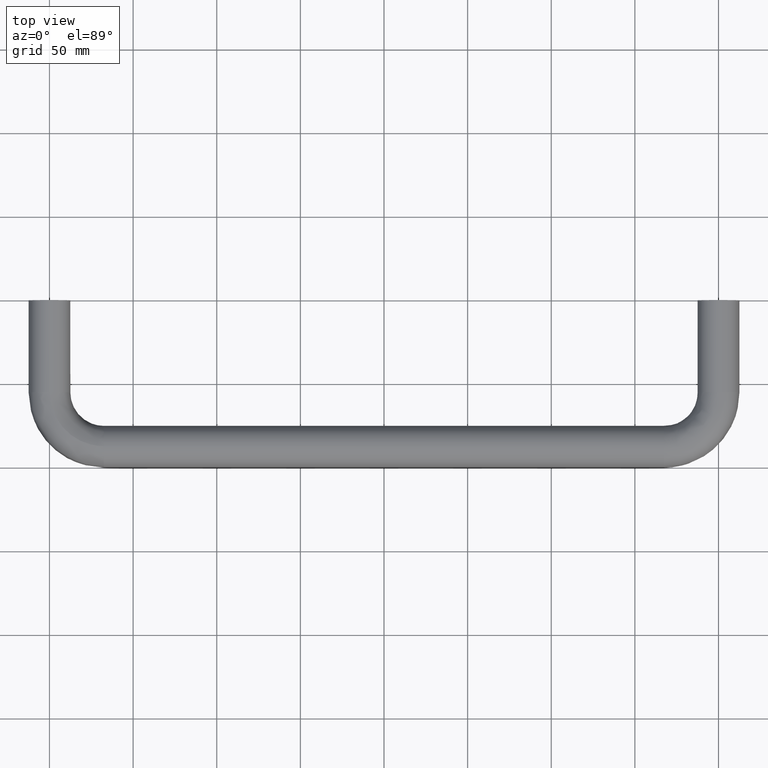
[diagram: clean part render]
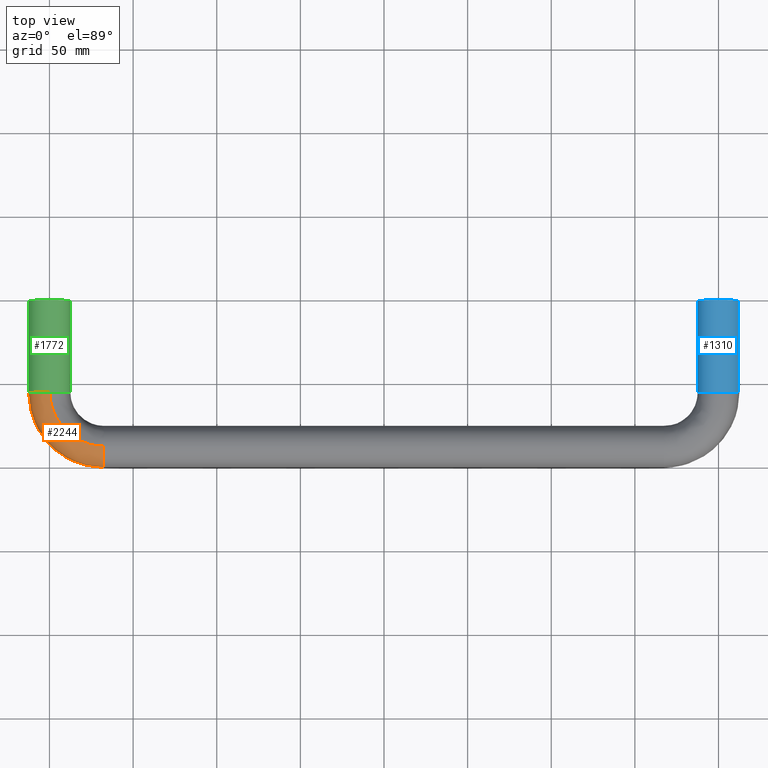
[diagram: same view with three faces highlighted in distinct colors, each labeled with its STEP entity id]
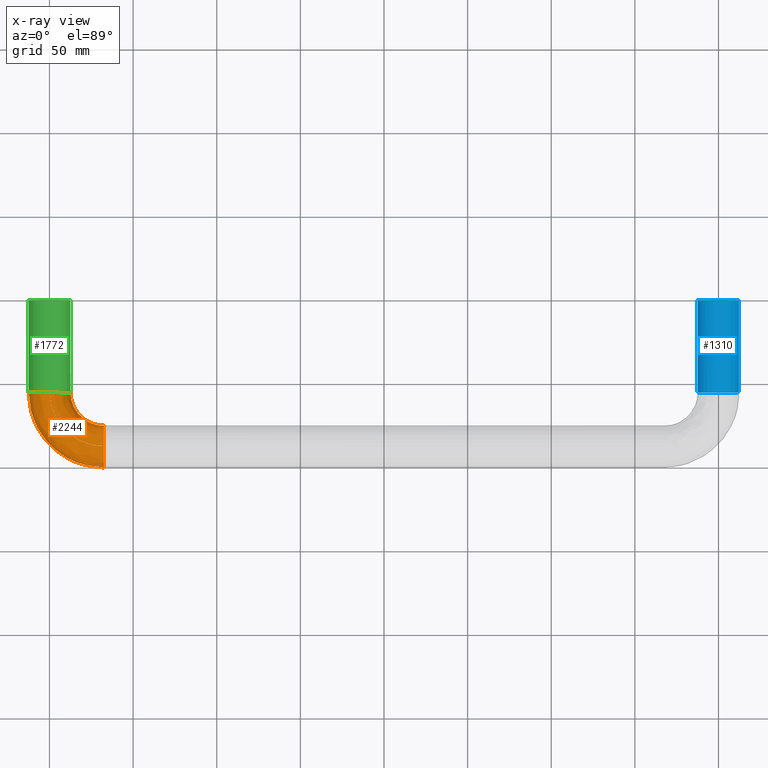
[diagram: x-ray of the same camera — body ghosted, the three highlighted faces saturated]
A machine part, top view with three faces highlighted in distinct colors.
The next image is the same camera in x-ray (body ghosted, the three faces saturated) — at least one of them is partly hidden behind the body in this view.
Their STEP definitions:

[orange] entity #2244 — the highlighted face is a freeform B-spline surface patch.
#1403=CARTESIAN_POINT('',(32.500000000000000,-98.936217568845137,-5.046080431189905));
#1404=VERTEX_POINT('',#1403);
#1410=CARTESIAN_POINT('',(32.500000000000000,-87.500000000000000,-12.500000000000000));
#1411=VERTEX_POINT('',#1410);
#1412=CARTESIAN_POINT('',(32.500000000000007,-98.936217568845137,-5.046080431189905));
#1413=CARTESIAN_POINT('',(32.499999999999993,-95.647273698418402,-12.499999999999996));
#1414=CARTESIAN_POINT('',(32.500000000000000,-87.500000000000000,-12.500000000000000));
#1422=(BOUNDED_CURVE()B_SPLINE_CURVE(2,(#1412,#1413,#1414),.UNSPECIFIED.,.F.,.U.)B_SPLINE_CURVE_WITH_KNOTS((3,3),(0.318548117658244,0.500000000000000),.UNSPECIFIED.)CURVE()GEOMETRIC_REPRESENTATION_ITEM()RATIONAL_B_SPLINE_CURVE((0.883422078879661,0.787415896484653,1.0))REPRESENTATION_ITEM(''));
#1423=EDGE_CURVE('',#1404,#1411,#1422,.T.);
#1425=CARTESIAN_POINT('',(32.499999999245048,-75.030429077097210,-0.871665646160868));
#1426=VERTEX_POINT('',#1425);
#1427=CARTESIAN_POINT('',(32.500000000000000,-87.500000000000000,-12.500000000000000));
#1428=CARTESIAN_POINT('',(32.500000000000007,-75.843289411918192,-12.499999999999998));
#1429=CARTESIAN_POINT('',(32.499999999245048,-75.030429077097210,-0.871665646160868));
#1437=(BOUNDED_CURVE()B_SPLINE_CURVE(2,(#1427,#1428,#1429),.UNSPECIFIED.,.F.,.U.)B_SPLINE_CURVE_WITH_KNOTS((3,3),(0.500000000000000,0.737833686494646),.UNSPECIFIED.)CURVE()GEOMETRIC_REPRESENTATION_ITEM()RATIONAL_B_SPLINE_CURVE((1.0,0.721360504081254,0.972879876301430))REPRESENTATION_ITEM(''));
#1438=EDGE_CURVE('',#1411,#1426,#1437,.T.);
#1440=CARTESIAN_POINT('',(32.499999997641403,-87.342924498158155,12.499013052506230));
#1441=VERTEX_POINT('',#1440);
#1457=CARTESIAN_POINT('',(32.500000000000000,-87.500000000000000,12.500000000000000));
#1458=VERTEX_POINT('',#1457);
#1459=CARTESIAN_POINT('',(32.499999997641410,-87.342924498158155,12.499013052506234));
#1460=CARTESIAN_POINT('',(32.500000000000007,-87.421459146801041,12.500000000000000));
#1461=CARTESIAN_POINT('',(32.500000000000000,-87.500000000000000,12.500000000000000));
#1469=(BOUNDED_CURVE()B_SPLINE_CURVE(2,(#1459,#1460,#1461),.UNSPECIFIED.,.F.,.U.)B_SPLINE_CURVE_WITH_KNOTS((3,3),(0.997784295828865,1.0),.UNSPECIFIED.)CURVE()GEOMETRIC_REPRESENTATION_ITEM()RATIONAL_B_SPLINE_CURVE((0.994854295430277,0.997404141093511,1.0))REPRESENTATION_ITEM(''));
#1470=EDGE_CURVE('',#1441,#1458,#1469,.T.);
#1472=CARTESIAN_POINT('',(32.500000000000000,-99.545380664979035,3.340479701442447));
#1473=VERTEX_POINT('',#1472);
#1474=CARTESIAN_POINT('',(32.500000000000000,-87.500000000000000,12.500000000000000));
#1475=CARTESIAN_POINT('',(32.500000000000000,-97.005220873614405,12.499999999999998));
#1476=CARTESIAN_POINT('',(32.500000000000007,-99.545380664979035,3.340479701442447));
#1484=(BOUNDED_CURVE()B_SPLINE_CURVE(2,(#1474,#1475,#1476),.UNSPECIFIED.,.F.,.U.)B_SPLINE_CURVE_WITH_KNOTS((3,3),(0.0,0.204451173353575),.UNSPECIFIED.)CURVE()GEOMETRIC_REPRESENTATION_ITEM()RATIONAL_B_SPLINE_CURVE((1.0,0.760470550985137,0.912717717200867))REPRESENTATION_ITEM(''));
#1485=EDGE_CURVE('',#1458,#1473,#1484,.T.);
#1587=CARTESIAN_POINT('',(32.500000000000000,-99.545380664979035,3.340479701442448));
#1588=CARTESIAN_POINT('',(32.500000000000000,-99.999999999999986,1.701175339017228));
#1589=CARTESIAN_POINT('',(32.500000000000000,-99.999999999999986,0.0));
#1590=CARTESIAN_POINT('',(32.500000000000000,-99.999999999999986,-2.635170122917379));
#1591=CARTESIAN_POINT('',(32.500000000000000,-98.936217568845152,-5.046080431189905));
#1599=(BOUNDED_CURVE()B_SPLINE_CURVE(2,(#1587,#1588,#1589,#1590,#1591),.UNSPECIFIED.,.F.,.U.)B_SPLINE_CURVE_WITH_KNOTS((3,2,3),(0.204451173353575,0.250000000000000,0.318548117658244),.UNSPECIFIED.)CURVE()GEOMETRIC_REPRESENTATION_ITEM()RATIONAL_B_SPLINE_CURVE((0.912717717200867,0.946636230201411,1.0,0.919690884701895,0.883422078879661))REPRESENTATION_ITEM(''));
#1600=EDGE_CURVE('',#1473,#1404,#1599,.T.);
#1632=CARTESIAN_POINT('',(-4.395224680212863,-55.0,-11.701794734588701));
#1633=VERTEX_POINT('',#1632);
#1634=CARTESIAN_POINT('',(0.0,-55.0,-12.500000000000000));
#1635=VERTEX_POINT('',#1634);
#1636=CARTESIAN_POINT('',(-4.395224680212863,-55.0,-11.701794734588695));
#1637=CARTESIAN_POINT('',(-2.270092326185641,-55.0,-12.499999999999996));
#1638=CARTESIAN_POINT('',(0.0,-55.0,-12.500000000000000));
#1646=(BOUNDED_CURVE()B_SPLINE_CURVE(2,(#1636,#1637,#1638),.UNSPECIFIED.,.F.,.U.)B_SPLINE_CURVE_WITH_KNOTS((3,3),(0.440284170890319,0.500000000000000),.UNSPECIFIED.)CURVE()GEOMETRIC_REPRESENTATION_ITEM()RATIONAL_B_SPLINE_CURVE((0.893499554625253,0.930038554391806,1.0))REPRESENTATION_ITEM(''));
#1647=EDGE_CURVE('',#1633,#1635,#1646,.T.);
#1703=CARTESIAN_POINT('',(-12.476684904395480,-55.0,0.763107984775608));
#1704=VERTEX_POINT('',#1703);
#1710=CARTESIAN_POINT('',(0.0,-55.0,12.500000000000000));
#1711=VERTEX_POINT('',#1710);
#1712=CARTESIAN_POINT('',(0.0,-55.0,12.500000000000000));
#1713=CARTESIAN_POINT('',(-11.758824664925088,-55.0,12.500000000000000));
#1714=CARTESIAN_POINT('',(-12.476684904395544,-54.999999999999993,0.763107984775611));
#1722=(BOUNDED_CURVE()B_SPLINE_CURVE(2,(#1712,#1713,#1714),.UNSPECIFIED.,.F.,.U.)B_SPLINE_CURVE_WITH_KNOTS((3,3),(0.0,0.239332945085183),.UNSPECIFIED.)CURVE()GEOMETRIC_REPRESENTATION_ITEM()RATIONAL_B_SPLINE_CURVE((1.0,0.719604013383589,0.976072004902948))REPRESENTATION_ITEM(''));
#1723=EDGE_CURVE('',#1711,#1704,#1722,.T.);
#1725=CARTESIAN_POINT('',(0.157075501751797,-55.000000002527713,12.499013052507360));
#1726=VERTEX_POINT('',#1725);
#1727=CARTESIAN_POINT('',(0.157075501751797,-55.000000002527713,12.499013052507363));
#1728=CARTESIAN_POINT('',(0.078540853108888,-54.999999999999993,12.499999999999996));
#1729=CARTESIAN_POINT('',(0.0,-55.0,12.500000000000000));
#1737=(BOUNDED_CURVE()B_SPLINE_CURVE(2,(#1727,#1728,#1729),.UNSPECIFIED.,.F.,.U.)B_SPLINE_CURVE_WITH_KNOTS((3,3),(0.997784295831399,1.0),.UNSPECIFIED.)CURVE()GEOMETRIC_REPRESENTATION_ITEM()RATIONAL_B_SPLINE_CURVE((0.994854295436109,0.997404141096480,1.0))REPRESENTATION_ITEM(''));
#1738=EDGE_CURVE('',#1726,#1711,#1737,.T.);
#1740=CARTESIAN_POINT('',(12.469570922876910,-55.000000002178382,-0.871665646531236));
#1741=VERTEX_POINT('',#1740);
#1757=CARTESIAN_POINT('',(0.0,-55.0,-12.500000000000000));
#1758=CARTESIAN_POINT('',(11.656710587387526,-55.0,-12.500000000000000));
#1759=CARTESIAN_POINT('',(12.469570922876906,-55.000000002178382,-0.871665646531236));
#1767=(BOUNDED_CURVE()B_SPLINE_CURVE(2,(#1757,#1758,#1759),.UNSPECIFIED.,.F.,.U.)B_SPLINE_CURVE_WITH_KNOTS((3,3),(0.500000000000000,0.737833686484428),.UNSPECIFIED.)CURVE()GEOMETRIC_REPRESENTATION_ITEM()RATIONAL_B_SPLINE_CURVE((1.0,0.721360504093226,0.972879876279817))REPRESENTATION_ITEM(''));
#1768=EDGE_CURVE('',#1635,#1741,#1767,.T.);
#1787=CARTESIAN_POINT('',(-12.476684904395544,-54.999999999999993,0.763107984775611));
#1788=CARTESIAN_POINT('',(-12.499999999999996,-55.0,0.381910163266560));
#1789=CARTESIAN_POINT('',(-12.500000000000000,-55.0,0.0));
#1790=CARTESIAN_POINT('',(-12.499999999999998,-54.999999999999986,-8.657619945677251));
#1791=CARTESIAN_POINT('',(-4.395224680212862,-55.0,-11.701794734588701));
#1799=(BOUNDED_CURVE()B_SPLINE_CURVE(2,(#1787,#1788,#1789,#1790,#1791),.UNSPECIFIED.,.F.,.U.)B_SPLINE_CURVE_WITH_KNOTS((3,2,3),(0.239332945085183,0.250000000000000,0.440284170890319),.UNSPECIFIED.)CURVE()GEOMETRIC_REPRESENTATION_ITEM()RATIONAL_B_SPLINE_CURVE((0.976072004902948,0.987502767802958,1.0,0.777068226794742,0.893499554625253))REPRESENTATION_ITEM(''));
#1800=EDGE_CURVE('',#1704,#1633,#1799,.T.);
#2171=CARTESIAN_POINT('',(12.536022993301504,-53.615886792205657,-0.606600857936461));
#2172=CARTESIAN_POINT('',(10.944486437004258,-76.571667458348401,-0.606600857936461));
#2173=CARTESIAN_POINT('',(33.899068396967174,-74.962934526681821,-0.606600857936461));
#2174=CARTESIAN_POINT('',(12.526818297608170,-53.615248625728185,-0.738594277966079));
#2175=CARTESIAN_POINT('',(10.934547939139112,-76.581613404213030,-0.738594277966079));
#2176=CARTESIAN_POINT('',(33.899713458762427,-74.972138741723867,-0.738594277966079));
#2177=CARTESIAN_POINT('',(11.696349228770707,-53.557671760835120,-12.647347839919878));
#2178=CARTESIAN_POINT('',(10.037873530479553,-77.478959788723287,-12.647347839919876));
#2179=CARTESIAN_POINT('',(33.957912435272945,-75.802564445083178,-12.647347839919879));
#2180=CARTESIAN_POINT('',(-0.078870558547338,-52.741289472534575,-12.499013052547699));
#2181=CARTESIAN_POINT('',(-2.676071679316352,-90.202432943183467,-12.499013052547697));
#2182=CARTESIAN_POINT('',(34.783115643343734,-87.577169353345994,-12.499013052547690));
#2183=CARTESIAN_POINT('',(-12.547951825996599,-51.876801396559181,-12.341937554005790));
#2184=CARTESIAN_POINT('',(-16.139193295235668,-103.675643943290620,-12.341937554005790));
#2185=CARTESIAN_POINT('',(35.656944416771523,-100.045599509644220,-12.341937554005792));
#2186=CARTESIAN_POINT('',(-12.391252481159530,-51.887665445980247,0.157075498541906));
#2187=CARTESIAN_POINT('',(-15.970001813407443,-103.506325667847220,0.157075498541906));
#2188=CARTESIAN_POINT('',(35.645962982505523,-99.888908347341911,0.157075498541906));
#2189=CARTESIAN_POINT('',(-12.234553136322470,-51.898529495401299,12.656088551089603));
#2190=CARTESIAN_POINT('',(-15.800810331579218,-103.337007392403810,12.656088551089603));
#2191=CARTESIAN_POINT('',(35.634981548239523,-99.732217185039573,12.656088551089603));
#2192=CARTESIAN_POINT('',(0.366579479731253,-52.772172762030799,12.497349575426146));
#2193=CARTESIAN_POINT('',(-2.195110178582834,-89.721111005584021,12.497349575426144));
#2194=CARTESIAN_POINT('',(34.751898663341500,-87.131742575601265,12.497349575426140));
#2195=CARTESIAN_POINT('',(0.497477362843783,-52.781247982305175,12.495700628738978));
#2196=CARTESIAN_POINT('',(-2.053777061746801,-89.579671972441602,12.495700628738980));
#2197=CARTESIAN_POINT('',(34.742725386322022,-87.000851527721366,12.495700628738973));
#2205=(BOUNDED_SURFACE()B_SPLINE_SURFACE(2,2,((#2171,#2174,#2177,#2180,#2183,#2186,#2189,#2192,#2195),(#2172,#2175,#2178,#2181,#2184,#2187,#2190,#2193,#2196),(#2173,#2176,#2179,#2182,#2185,#2188,#2191,#2194,#2197)),.UNSPECIFIED.,.F.,.F.,.U.)B_SPLINE_SURFACE_WITH_KNOTS((3,3),(3,1,2,2,1,3),(0.0,82.004379108096273),(0.0,0.306783167279183,20.189034161187742,40.899712279842497,61.610390398497252,61.921939849036377),.UNSPECIFIED.)GEOMETRIC_REPRESENTATION_ITEM()RATIONAL_B_SPLINE_SURFACE(((0.908116045011109,0.904437940864484,0.662386295974072,0.921487970695580,0.651590392860676,0.921487970695580,0.651590392860676,0.925548023273027,0.929608075850473),(0.592626735812384,0.590226444719228,0.432266152092013,0.601353110281207,0.425220862167464,0.601353110281207,0.425220862167464,0.604002656800528,0.606652203319849),(0.898083435392415,0.894445965901727,0.655068439230114,0.911307631818076,0.644391806205615,0.911307631818076,0.644391806205615,0.915322830081182,0.919338028344287)))REPRESENTATION_ITEM('')SURFACE());
#2206=ORIENTED_EDGE('',*,*,#1438,.F.);
#2207=ORIENTED_EDGE('',*,*,#1423,.F.);
#2208=ORIENTED_EDGE('',*,*,#1600,.F.);
#2209=ORIENTED_EDGE('',*,*,#1485,.F.);
#2210=ORIENTED_EDGE('',*,*,#1470,.F.);
#2211=CARTESIAN_POINT('',(0.157075501751797,-55.000000002527713,12.499013052507358));
#2212=CARTESIAN_POINT('',(0.157075503597359,-87.342924496740849,12.499013052547696));
#2213=CARTESIAN_POINT('',(32.499999997641410,-87.342924498158155,12.499013052506232));
#2221=(BOUNDED_CURVE()B_SPLINE_CURVE(2,(#2211,#2212,#2213),.UNSPECIFIED.,.F.,.U.)B_SPLINE_CURVE_WITH_KNOTS((3,3),(-1.747842683505965,-0.278273131097098),.UNSPECIFIED.)CURVE()GEOMETRIC_REPRESENTATION_ITEM()RATIONAL_B_SPLINE_CURVE((0.893710737905191,0.628668022945112,0.884455039402746))REPRESENTATION_ITEM(''));
#2222=EDGE_CURVE('',#1726,#1441,#2221,.T.);
#2223=ORIENTED_EDGE('',*,*,#2222,.F.);
#2224=ORIENTED_EDGE('',*,*,#1738,.T.);
#2225=ORIENTED_EDGE('',*,*,#1723,.T.);
#2226=ORIENTED_EDGE('',*,*,#1800,.T.);
#2227=ORIENTED_EDGE('',*,*,#1647,.T.);
#2228=ORIENTED_EDGE('',*,*,#1768,.T.);
#2229=CARTESIAN_POINT('',(12.469570922876912,-55.000000002178389,-0.871665646531236));
#2230=CARTESIAN_POINT('',(12.469570927362156,-75.030429075484705,-0.871665644693026));
#2231=CARTESIAN_POINT('',(32.499999999245055,-75.030429077097196,-0.871665646160869));
#2239=(BOUNDED_CURVE()B_SPLINE_CURVE(2,(#2229,#2230,#2231),.UNSPECIFIED.,.F.,.U.)B_SPLINE_CURVE_WITH_KNOTS((3,3),(-1.747842683442039,-0.278273131024250),.UNSPECIFIED.)CURVE()GEOMETRIC_REPRESENTATION_ITEM()RATIONAL_B_SPLINE_CURVE((0.873607430512677,0.614526639201285,0.864559931583456))REPRESENTATION_ITEM(''));
#2240=EDGE_CURVE('',#1741,#1426,#2239,.T.);
#2241=ORIENTED_EDGE('',*,*,#2240,.T.);
#2242=EDGE_LOOP('',(#2206,#2207,#2208,#2209,#2210,#2223,#2224,#2225,#2226,#2227,#2228,#2241));
#2243=FACE_OUTER_BOUND('',#2242,.T.);
#2244=ADVANCED_FACE('',(#2243),#2205,.T.);

[blue] entity #1310 — the highlighted face is a freeform B-spline surface patch.
#1144=CARTESIAN_POINT('',(411.436217568948450,-56.375000002903946,-5.046080430955922));
#1145=CARTESIAN_POINT('',(409.046033125377330,-56.375000002903931,-10.463090663077280));
#1146=CARTESIAN_POINT('',(403.340479700978220,-56.375000002903938,-12.045380665107791));
#1147=CARTESIAN_POINT('',(391.295099035870410,-56.375000002903953,-15.385860366085989));
#1148=CARTESIAN_POINT('',(387.954619334892190,-56.375000002903938,-3.340479700978208));
#1149=CARTESIAN_POINT('',(384.614139633913850,-56.375000002903953,8.704900964129578));
#1150=CARTESIAN_POINT('',(396.659520299021780,-56.375000002903938,12.045380665107791));
#1151=CARTESIAN_POINT('',(408.704900964129650,-56.375000002903953,15.385860366085989));
#1152=CARTESIAN_POINT('',(412.045380665107810,-56.375000002903938,3.340479700978208));
#1153=CARTESIAN_POINT('',(411.436217568948450,1.409375000072600,-5.046080430955922));
#1154=CARTESIAN_POINT('',(409.046033125377330,1.409375000072600,-10.463090663077280));
#1155=CARTESIAN_POINT('',(403.340479700978220,1.409375000072600,-12.045380665107791));
#1156=CARTESIAN_POINT('',(391.295099035870410,1.409375000072600,-15.385860366085989));
#1157=CARTESIAN_POINT('',(387.954619334892190,1.409375000072600,-3.340479700978208));
#1158=CARTESIAN_POINT('',(384.614139633913850,1.409375000072600,8.704900964129578));
#1159=CARTESIAN_POINT('',(396.659520299021780,1.409375000072600,12.045380665107791));
#1160=CARTESIAN_POINT('',(408.704900964129650,1.409375000072600,15.385860366085989));
#1161=CARTESIAN_POINT('',(412.045380665107810,1.409375000072600,3.340479700978208));
#1169=(BOUNDED_SURFACE()B_SPLINE_SURFACE(2,1,((#1144,#1153),(#1145,#1154),(#1146,#1155),(#1147,#1156),(#1148,#1157),(#1149,#1158),(#1150,#1159),(#1151,#1160),(#1152,#1161)),.UNSPECIFIED.,.F.,.F.,.U.)B_SPLINE_SURFACE_WITH_KNOTS((3,2,2,2,3),(2,2),(0.0,11.597979746446690,32.308657865101473,53.019335983756271,73.730014102411062),(0.0,57.784375002976539),.UNSPECIFIED.)GEOMETRIC_REPRESENTATION_ITEM()RATIONAL_B_SPLINE_SURFACE(((0.855662221768731,0.855662221768731),(0.835979797464467,0.835979797464467),(1.0,1.0),(0.707106781186548,0.707106781186548),(1.0,1.0),(0.707106781186548,0.707106781186548),(1.0,1.0),(0.707106781186548,0.707106781186548),(1.0,1.0)))REPRESENTATION_ITEM('')SURFACE());
#1170=CARTESIAN_POINT('',(411.436217568483300,-55.000000000403787,-5.046080430949266));
#1171=VERTEX_POINT('',#1170);
#1172=CARTESIAN_POINT('',(405.036330454572180,-55.000000002833112,-11.440514654173059));
#1173=VERTEX_POINT('',#1172);
#1174=CARTESIAN_POINT('',(411.436217568483300,-55.000000000403787,-5.046080430949266));
#1175=CARTESIAN_POINT('',(409.477393143603480,-55.000000001147335,-9.485475043565112));
#1176=CARTESIAN_POINT('',(405.036330454572240,-55.000000002833112,-11.440514654173068));
#1184=(BOUNDED_CURVE()B_SPLINE_CURVE(2,(#1174,#1175,#1176),.UNSPECIFIED.,.F.,.U.)B_SPLINE_CURVE_WITH_KNOTS((3,3),(0.318548117644688,0.431585009638875),.UNSPECIFIED.)CURVE()GEOMETRIC_REPRESENTATION_ITEM()RATIONAL_B_SPLINE_CURVE((0.883422078894007,0.823614264653065,0.883563120282062))REPRESENTATION_ITEM(''));
#1185=EDGE_CURVE('',#1171,#1173,#1184,.T.);
#1186=ORIENTED_EDGE('',*,*,#1185,.T.);
#1187=CARTESIAN_POINT('',(400.0,-55.0,-12.500000000000000));
#1188=VERTEX_POINT('',#1187);
#1189=CARTESIAN_POINT('',(405.036330454572180,-55.000000002833119,-11.440514654173064));
#1190=CARTESIAN_POINT('',(402.629606410007060,-55.0,-12.499999999999995));
#1191=CARTESIAN_POINT('',(400.0,-55.0,-12.500000000000000));
#1199=(BOUNDED_CURVE()B_SPLINE_CURVE(2,(#1189,#1190,#1191),.UNSPECIFIED.,.F.,.U.)B_SPLINE_CURVE_WITH_KNOTS((3,3),(0.431585009638875,0.500000000000000),.UNSPECIFIED.)CURVE()GEOMETRIC_REPRESENTATION_ITEM()RATIONAL_B_SPLINE_CURVE((0.883563120282062,0.919846853032156,1.0))REPRESENTATION_ITEM(''));
#1200=EDGE_CURVE('',#1173,#1188,#1199,.T.);
#1201=ORIENTED_EDGE('',*,*,#1200,.T.);
#1202=CARTESIAN_POINT('',(388.559485342505410,-55.000000000164668,-5.036330447026957));
#1203=VERTEX_POINT('',#1202);
#1204=CARTESIAN_POINT('',(400.0,-55.0,-12.500000000000000));
#1205=CARTESIAN_POINT('',(391.845133527656120,-55.000000000000014,-12.500000000000000));
#1206=CARTESIAN_POINT('',(388.559485342505410,-55.000000000164668,-5.036330447026957));
#1214=(BOUNDED_CURVE()B_SPLINE_CURVE(2,(#1204,#1205,#1206),.UNSPECIFIED.,.F.,.U.)B_SPLINE_CURVE_WITH_KNOTS((3,3),(0.500000000000000,0.681585009844900),.UNSPECIFIED.)CURVE()GEOMETRIC_REPRESENTATION_ITEM()RATIONAL_B_SPLINE_CURVE((1.0,0.787259927913019,0.883563120500592))REPRESENTATION_ITEM(''));
#1215=EDGE_CURVE('',#1188,#1203,#1214,.T.);
#1216=ORIENTED_EDGE('',*,*,#1215,.T.);
#1217=CARTESIAN_POINT('',(400.0,-55.0,12.500000000000000));
#1218=VERTEX_POINT('',#1217);
#1219=CARTESIAN_POINT('',(388.559485342505470,-55.000000000164654,-5.036330447026957));
#1220=CARTESIAN_POINT('',(387.500000000000000,-55.000000000000007,-2.629606401398224));
#1221=CARTESIAN_POINT('',(387.500000000000000,-55.0,0.0));
#1222=CARTESIAN_POINT('',(387.499999999999940,-55.0,12.499999999999998));
#1223=CARTESIAN_POINT('',(400.0,-55.0,12.500000000000000));
#1231=(BOUNDED_CURVE()B_SPLINE_CURVE(2,(#1219,#1220,#1221,#1222,#1223),.UNSPECIFIED.,.F.,.U.)B_SPLINE_CURVE_WITH_KNOTS((3,2,3),(0.681585009844901,0.750000000000000,1.0),.UNSPECIFIED.)CURVE()GEOMETRIC_REPRESENTATION_ITEM()RATIONAL_B_SPLINE_CURVE((0.883563120500592,0.919846853273529,1.0,0.707106781186547,1.0))REPRESENTATION_ITEM(''));
#1232=EDGE_CURVE('',#1203,#1218,#1231,.T.);
#1233=ORIENTED_EDGE('',*,*,#1232,.T.);
#1234=CARTESIAN_POINT('',(412.045380664979120,-55.0,3.340479701442453));
#1235=VERTEX_POINT('',#1234);
#1236=CARTESIAN_POINT('',(400.0,-55.0,12.500000000000000));
#1237=CARTESIAN_POINT('',(409.505220873614410,-54.999999999999993,12.499999999999998));
#1238=CARTESIAN_POINT('',(412.045380664979120,-55.000000000000007,3.340479701442453));
#1246=(BOUNDED_CURVE()B_SPLINE_CURVE(2,(#1236,#1237,#1238),.UNSPECIFIED.,.F.,.U.)B_SPLINE_CURVE_WITH_KNOTS((3,3),(0.0,0.204451173353575),.UNSPECIFIED.)CURVE()GEOMETRIC_REPRESENTATION_ITEM()RATIONAL_B_SPLINE_CURVE((1.0,0.760470550985137,0.912717717200866))REPRESENTATION_ITEM(''));
#1247=EDGE_CURVE('',#1218,#1235,#1246,.T.);
#1248=ORIENTED_EDGE('',*,*,#1247,.T.);
#1249=CARTESIAN_POINT('',(412.045380664979120,3.330669E-016,3.340479701442451));
#1250=VERTEX_POINT('',#1249);
#1251=CARTESIAN_POINT('',(412.045380664979120,-55.0,3.340479701442453));
#1252=CARTESIAN_POINT('',(412.045380664979120,3.330669E-016,3.340479701442451));
#1253=QUASI_UNIFORM_CURVE('',1,(#1251,#1252),.UNSPECIFIED.,.F.,.U.);
#1254=EDGE_CURVE('',#1235,#1250,#1253,.T.);
#1255=ORIENTED_EDGE('',*,*,#1254,.T.);
#1256=CARTESIAN_POINT('',(400.0,0.0,12.500000000000000));
#1257=VERTEX_POINT('',#1256);
#1258=CARTESIAN_POINT('',(400.0,0.0,12.500000000000000));
#1259=CARTESIAN_POINT('',(409.505220873614410,0.0,12.500000000000000));
#1260=CARTESIAN_POINT('',(412.045380664979120,3.330669E-016,3.340479701442451));
#1268=(BOUNDED_CURVE()B_SPLINE_CURVE(2,(#1258,#1259,#1260),.UNSPECIFIED.,.F.,.U.)B_SPLINE_CURVE_WITH_KNOTS((3,3),(0.0,0.204451173353575),.UNSPECIFIED.)CURVE()GEOMETRIC_REPRESENTATION_ITEM()RATIONAL_B_SPLINE_CURVE((1.0,0.760470550985137,0.912717717200867))REPRESENTATION_ITEM(''));
#1269=EDGE_CURVE('',#1257,#1250,#1268,.T.);
#1270=ORIENTED_EDGE('',*,*,#1269,.F.);
#1271=CARTESIAN_POINT('',(400.0,0.0,-12.500000000000000));
#1272=VERTEX_POINT('',#1271);
#1273=CARTESIAN_POINT('',(400.0,0.0,-12.500000000000000));
#1274=CARTESIAN_POINT('',(387.499999999999940,0.0,-12.499999999999998));
#1275=CARTESIAN_POINT('',(387.500000000000000,0.0,0.0));
#1276=CARTESIAN_POINT('',(387.499999999999940,0.0,12.499999999999998));
#1277=CARTESIAN_POINT('',(400.0,0.0,12.500000000000000));
#1285=(BOUNDED_CURVE()B_SPLINE_CURVE(2,(#1273,#1274,#1275,#1276,#1277),.UNSPECIFIED.,.F.,.U.)B_SPLINE_CURVE_WITH_KNOTS((3,2,3),(0.500000000000000,0.750000000000000,1.0),.UNSPECIFIED.)CURVE()GEOMETRIC_REPRESENTATION_ITEM()RATIONAL_B_SPLINE_CURVE((1.0,0.707106781186547,1.0,0.707106781186547,1.0))REPRESENTATION_ITEM(''));
#1286=EDGE_CURVE('',#1272,#1257,#1285,.T.);
#1287=ORIENTED_EDGE('',*,*,#1286,.F.);
#1288=CARTESIAN_POINT('',(411.436217568845220,3.892505E-016,-5.046080431189907));
#1289=VERTEX_POINT('',#1288);
#1290=CARTESIAN_POINT('',(411.436217568845170,3.892505E-016,-5.046080431189907));
#1291=CARTESIAN_POINT('',(408.147273698418420,0.0,-12.500000000000000));
#1292=CARTESIAN_POINT('',(400.0,0.0,-12.500000000000000));
#1300=(BOUNDED_CURVE()B_SPLINE_CURVE(2,(#1290,#1291,#1292),.UNSPECIFIED.,.F.,.U.)B_SPLINE_CURVE_WITH_KNOTS((3,3),(0.318548117658244,0.500000000000000),.UNSPECIFIED.)CURVE()GEOMETRIC_REPRESENTATION_ITEM()RATIONAL_B_SPLINE_CURVE((0.883422078879661,0.787415896484653,1.0))REPRESENTATION_ITEM(''));
#1301=EDGE_CURVE('',#1289,#1272,#1300,.T.);
#1302=ORIENTED_EDGE('',*,*,#1301,.F.);
#1303=CARTESIAN_POINT('',(411.436217568483300,-55.000000000403787,-5.046080430949266));
#1304=CARTESIAN_POINT('',(411.436217568845220,3.892505E-016,-5.046080431189907));
#1305=QUASI_UNIFORM_CURVE('',1,(#1303,#1304),.UNSPECIFIED.,.F.,.U.);
#1306=EDGE_CURVE('',#1171,#1289,#1305,.T.);
#1307=ORIENTED_EDGE('',*,*,#1306,.F.);
#1308=EDGE_LOOP('',(#1186,#1201,#1216,#1233,#1248,#1255,#1270,#1287,#1302,#1307));
#1309=FACE_OUTER_BOUND('',#1308,.T.);
#1310=ADVANCED_FACE('',(#1309),#1169,.T.);

[green] entity #1772 — the highlighted face is a freeform B-spline surface patch.
#1606=CARTESIAN_POINT('',(-4.395224679894646,1.375000000063194,-11.701794734708219));
#1607=CARTESIAN_POINT('',(-2.637368146442596,1.375000000063194,-12.362050242064381));
#1608=CARTESIAN_POINT('',(-0.763106744185705,1.375000000063194,-12.476684980273340));
#1609=CARTESIAN_POINT('',(11.713578236087629,1.375000000063194,-13.239791724459041));
#1610=CARTESIAN_POINT('',(12.476684980273340,1.375000000063194,-0.763106744185705));
#1611=CARTESIAN_POINT('',(13.239791724459041,1.375000000063194,11.713578236087629));
#1612=CARTESIAN_POINT('',(0.763106744185705,1.375000000063194,12.476684980273340));
#1613=CARTESIAN_POINT('',(-11.713578236087629,1.375000000063194,13.239791724459041));
#1614=CARTESIAN_POINT('',(-12.476684980273340,1.375000000063194,0.763106744185705));
#1615=CARTESIAN_POINT('',(-4.395224679894646,-56.409375002592490,-11.701794734708219));
#1616=CARTESIAN_POINT('',(-2.637368146442596,-56.409375002592490,-12.362050242064381));
#1617=CARTESIAN_POINT('',(-0.763106744185705,-56.409375002592490,-12.476684980273340));
#1618=CARTESIAN_POINT('',(11.713578236087629,-56.409375002592498,-13.239791724459041));
#1619=CARTESIAN_POINT('',(12.476684980273340,-56.409375002592490,-0.763106744185705));
#1620=CARTESIAN_POINT('',(13.239791724459041,-56.409375002592498,11.713578236087629));
#1621=CARTESIAN_POINT('',(0.763106744185705,-56.409375002592490,12.476684980273340));
#1622=CARTESIAN_POINT('',(-11.713578236087629,-56.409375002592498,13.239791724459041));
#1623=CARTESIAN_POINT('',(-12.476684980273340,-56.409375002592490,0.763106744185705));
#1631=(BOUNDED_SURFACE()B_SPLINE_SURFACE(2,1,((#1606,#1615),(#1607,#1616),(#1608,#1617),(#1609,#1618),(#1610,#1619),(#1611,#1620),(#1612,#1621),(#1613,#1622),(#1614,#1623)),.UNSPECIFIED.,.F.,.F.,.U.)B_SPLINE_SURFACE_WITH_KNOTS((3,2,2,2,3),(2,2),(0.0,4.142135623730949,24.852813742385699,45.563491861040447,66.274169979695188),(0.0,57.784375002655693),.UNSPECIFIED.)GEOMETRIC_REPRESENTATION_ITEM()RATIONAL_B_SPLINE_SURFACE(((0.906274169979695,0.906274169979695),(0.941421356237309,0.941421356237309),(1.0,1.0),(0.707106781186548,0.707106781186548),(1.0,1.0),(0.707106781186548,0.707106781186548),(1.0,1.0),(0.707106781186548,0.707106781186548),(1.0,1.0)))REPRESENTATION_ITEM('')SURFACE());
#1632=CARTESIAN_POINT('',(-4.395224680212863,-55.0,-11.701794734588701));
#1633=VERTEX_POINT('',#1632);
#1634=CARTESIAN_POINT('',(0.0,-55.0,-12.500000000000000));
#1635=VERTEX_POINT('',#1634);
#1636=CARTESIAN_POINT('',(-4.395224680212863,-55.0,-11.701794734588695));
#1637=CARTESIAN_POINT('',(-2.270092326185641,-55.0,-12.499999999999996));
#1638=CARTESIAN_POINT('',(0.0,-55.0,-12.500000000000000));
#1646=(BOUNDED_CURVE()B_SPLINE_CURVE(2,(#1636,#1637,#1638),.UNSPECIFIED.,.F.,.U.)B_SPLINE_CURVE_WITH_KNOTS((3,3),(0.440284170890319,0.500000000000000),.UNSPECIFIED.)CURVE()GEOMETRIC_REPRESENTATION_ITEM()RATIONAL_B_SPLINE_CURVE((0.893499554625253,0.930038554391806,1.0))REPRESENTATION_ITEM(''));
#1647=EDGE_CURVE('',#1633,#1635,#1646,.T.);
#1648=ORIENTED_EDGE('',*,*,#1647,.F.);
#1649=CARTESIAN_POINT('',(-4.395224680212863,1.960066E-015,-11.701794734588701));
#1650=VERTEX_POINT('',#1649);
#1651=CARTESIAN_POINT('',(-4.395224680212863,1.960066E-015,-11.701794734588701));
#1652=CARTESIAN_POINT('',(-4.395224680212863,-55.0,-11.701794734588701));
#1653=QUASI_UNIFORM_CURVE('',1,(#1651,#1652),.UNSPECIFIED.,.F.,.U.);
#1654=EDGE_CURVE('',#1650,#1633,#1653,.T.);
#1655=ORIENTED_EDGE('',*,*,#1654,.F.);
#1656=CARTESIAN_POINT('',(0.0,0.0,-12.500000000000000));
#1657=VERTEX_POINT('',#1656);
#1658=CARTESIAN_POINT('',(-4.395224680212863,1.960066E-015,-11.701794734588695));
#1659=CARTESIAN_POINT('',(-2.270092326185641,0.0,-12.499999999999996));
#1660=CARTESIAN_POINT('',(0.0,0.0,-12.500000000000000));
#1668=(BOUNDED_CURVE()B_SPLINE_CURVE(2,(#1658,#1659,#1660),.UNSPECIFIED.,.F.,.U.)B_SPLINE_CURVE_WITH_KNOTS((3,3),(0.440284170890319,0.500000000000000),.UNSPECIFIED.)CURVE()GEOMETRIC_REPRESENTATION_ITEM()RATIONAL_B_SPLINE_CURVE((0.893499554625253,0.930038554391806,1.0))REPRESENTATION_ITEM(''));
#1669=EDGE_CURVE('',#1650,#1657,#1668,.T.);
#1670=ORIENTED_EDGE('',*,*,#1669,.T.);
#1671=CARTESIAN_POINT('',(0.0,0.0,12.500000000000000));
#1672=VERTEX_POINT('',#1671);
#1673=CARTESIAN_POINT('',(0.0,0.0,-12.500000000000000));
#1674=CARTESIAN_POINT('',(12.499999999999998,0.0,-12.499999999999998));
#1675=CARTESIAN_POINT('',(12.500000000000000,0.0,0.0));
#1676=CARTESIAN_POINT('',(12.499999999999998,0.0,12.499999999999998));
#1677=CARTESIAN_POINT('',(0.0,0.0,12.500000000000000));
#1685=(BOUNDED_CURVE()B_SPLINE_CURVE(2,(#1673,#1674,#1675,#1676,#1677),.UNSPECIFIED.,.F.,.U.)B_SPLINE_CURVE_WITH_KNOTS((3,2,3),(0.500000000000000,0.750000000000000,1.0),.UNSPECIFIED.)CURVE()GEOMETRIC_REPRESENTATION_ITEM()RATIONAL_B_SPLINE_CURVE((1.0,0.707106781186547,1.0,0.707106781186547,1.0))REPRESENTATION_ITEM(''));
#1686=EDGE_CURVE('',#1657,#1672,#1685,.T.);
#1687=ORIENTED_EDGE('',*,*,#1686,.T.);
#1688=CARTESIAN_POINT('',(-12.476684904395480,1.998401E-015,0.763107984775608));
#1689=VERTEX_POINT('',#1688);
#1690=CARTESIAN_POINT('',(0.0,0.0,12.500000000000000));
#1691=CARTESIAN_POINT('',(-11.758824664925088,0.0,12.500000000000000));
#1692=CARTESIAN_POINT('',(-12.476684904395482,1.998401E-015,0.763107984775608));
#1700=(BOUNDED_CURVE()B_SPLINE_CURVE(2,(#1690,#1691,#1692),.UNSPECIFIED.,.F.,.U.)B_SPLINE_CURVE_WITH_KNOTS((3,3),(0.0,0.239332945085183),.UNSPECIFIED.)CURVE()GEOMETRIC_REPRESENTATION_ITEM()RATIONAL_B_SPLINE_CURVE((1.0,0.719604013383589,0.976072004902948))REPRESENTATION_ITEM(''));
#1701=EDGE_CURVE('',#1672,#1689,#1700,.T.);
#1702=ORIENTED_EDGE('',*,*,#1701,.T.);
#1703=CARTESIAN_POINT('',(-12.476684904395480,-55.0,0.763107984775608));
#1704=VERTEX_POINT('',#1703);
#1705=CARTESIAN_POINT('',(-12.476684904395480,1.998401E-015,0.763107984775608));
#1706=CARTESIAN_POINT('',(-12.476684904395480,-55.0,0.763107984775608));
#1707=QUASI_UNIFORM_CURVE('',1,(#1705,#1706),.UNSPECIFIED.,.F.,.U.);
#1708=EDGE_CURVE('',#1689,#1704,#1707,.T.);
#1709=ORIENTED_EDGE('',*,*,#1708,.T.);
#1710=CARTESIAN_POINT('',(0.0,-55.0,12.500000000000000));
#1711=VERTEX_POINT('',#1710);
#1712=CARTESIAN_POINT('',(0.0,-55.0,12.500000000000000));
#1713=CARTESIAN_POINT('',(-11.758824664925088,-55.0,12.500000000000000));
#1714=CARTESIAN_POINT('',(-12.476684904395544,-54.999999999999993,0.763107984775611));
#1722=(BOUNDED_CURVE()B_SPLINE_CURVE(2,(#1712,#1713,#1714),.UNSPECIFIED.,.F.,.U.)B_SPLINE_CURVE_WITH_KNOTS((3,3),(0.0,0.239332945085183),.UNSPECIFIED.)CURVE()GEOMETRIC_REPRESENTATION_ITEM()RATIONAL_B_SPLINE_CURVE((1.0,0.719604013383589,0.976072004902948))REPRESENTATION_ITEM(''));
#1723=EDGE_CURVE('',#1711,#1704,#1722,.T.);
#1724=ORIENTED_EDGE('',*,*,#1723,.F.);
#1725=CARTESIAN_POINT('',(0.157075501751797,-55.000000002527713,12.499013052507360));
#1726=VERTEX_POINT('',#1725);
#1727=CARTESIAN_POINT('',(0.157075501751797,-55.000000002527713,12.499013052507363));
#1728=CARTESIAN_POINT('',(0.078540853108888,-54.999999999999993,12.499999999999996));
#1729=CARTESIAN_POINT('',(0.0,-55.0,12.500000000000000));
#1737=(BOUNDED_CURVE()B_SPLINE_CURVE(2,(#1727,#1728,#1729),.UNSPECIFIED.,.F.,.U.)B_SPLINE_CURVE_WITH_KNOTS((3,3),(0.997784295831399,1.0),.UNSPECIFIED.)CURVE()GEOMETRIC_REPRESENTATION_ITEM()RATIONAL_B_SPLINE_CURVE((0.994854295436109,0.997404141096480,1.0))REPRESENTATION_ITEM(''));
#1738=EDGE_CURVE('',#1726,#1711,#1737,.T.);
#1739=ORIENTED_EDGE('',*,*,#1738,.F.);
#1740=CARTESIAN_POINT('',(12.469570922876910,-55.000000002178382,-0.871665646531236));
#1741=VERTEX_POINT('',#1740);
#1742=CARTESIAN_POINT('',(12.469570922876908,-55.000000002178382,-0.871665646531236));
#1743=CARTESIAN_POINT('',(12.500000000000004,-54.999999999999993,-0.436363950278838));
#1744=CARTESIAN_POINT('',(12.500000000000000,-55.0,0.0));
#1745=CARTESIAN_POINT('',(12.499999999999996,-54.999999999999993,12.343899117500847));
#1746=CARTESIAN_POINT('',(0.157075501751797,-55.000000002527706,12.499013052507356));
#1754=(BOUNDED_CURVE()B_SPLINE_CURVE(2,(#1742,#1743,#1744,#1745,#1746),.UNSPECIFIED.,.F.,.U.)B_SPLINE_CURVE_WITH_KNOTS((3,2,3),(0.737833686484429,0.750000000000000,0.997784295831399),.UNSPECIFIED.)CURVE()GEOMETRIC_REPRESENTATION_ITEM()RATIONAL_B_SPLINE_CURVE((0.972879876279819,0.985746277093323,1.0,0.709702640090067,0.994854295436110))REPRESENTATION_ITEM(''));
#1755=EDGE_CURVE('',#1741,#1726,#1754,.T.);
#1756=ORIENTED_EDGE('',*,*,#1755,.F.);
#1757=CARTESIAN_POINT('',(0.0,-55.0,-12.500000000000000));
#1758=CARTESIAN_POINT('',(11.656710587387526,-55.0,-12.500000000000000));
#1759=CARTESIAN_POINT('',(12.469570922876906,-55.000000002178382,-0.871665646531236));
#1767=(BOUNDED_CURVE()B_SPLINE_CURVE(2,(#1757,#1758,#1759),.UNSPECIFIED.,.F.,.U.)B_SPLINE_CURVE_WITH_KNOTS((3,3),(0.500000000000000,0.737833686484428),.UNSPECIFIED.)CURVE()GEOMETRIC_REPRESENTATION_ITEM()RATIONAL_B_SPLINE_CURVE((1.0,0.721360504093226,0.972879876279817))REPRESENTATION_ITEM(''));
#1768=EDGE_CURVE('',#1635,#1741,#1767,.T.);
#1769=ORIENTED_EDGE('',*,*,#1768,.F.);
#1770=EDGE_LOOP('',(#1648,#1655,#1670,#1687,#1702,#1709,#1724,#1739,#1756,#1769));
#1771=FACE_OUTER_BOUND('',#1770,.T.);
#1772=ADVANCED_FACE('',(#1771),#1631,.T.);